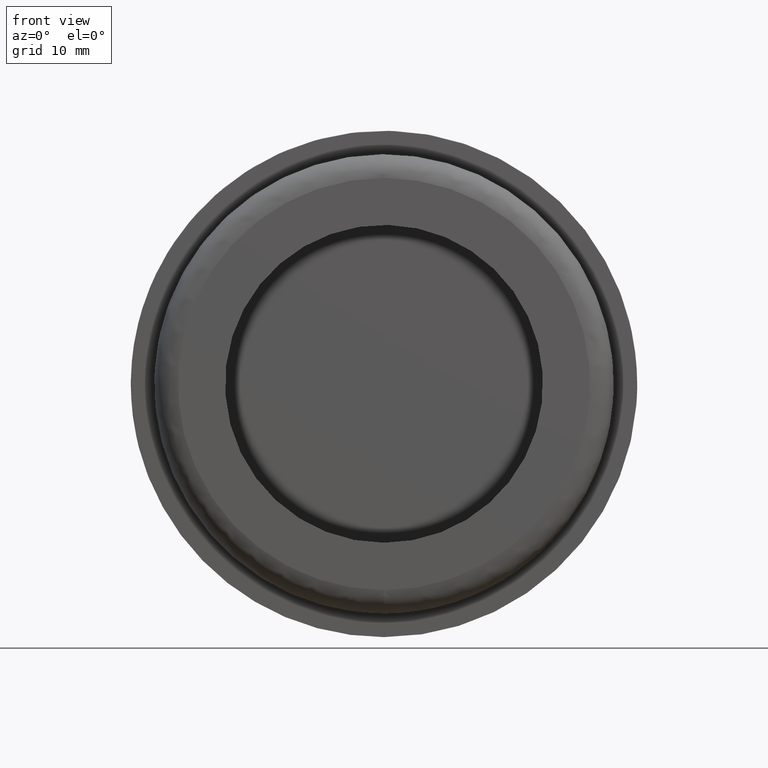
[diagram: clean part render]
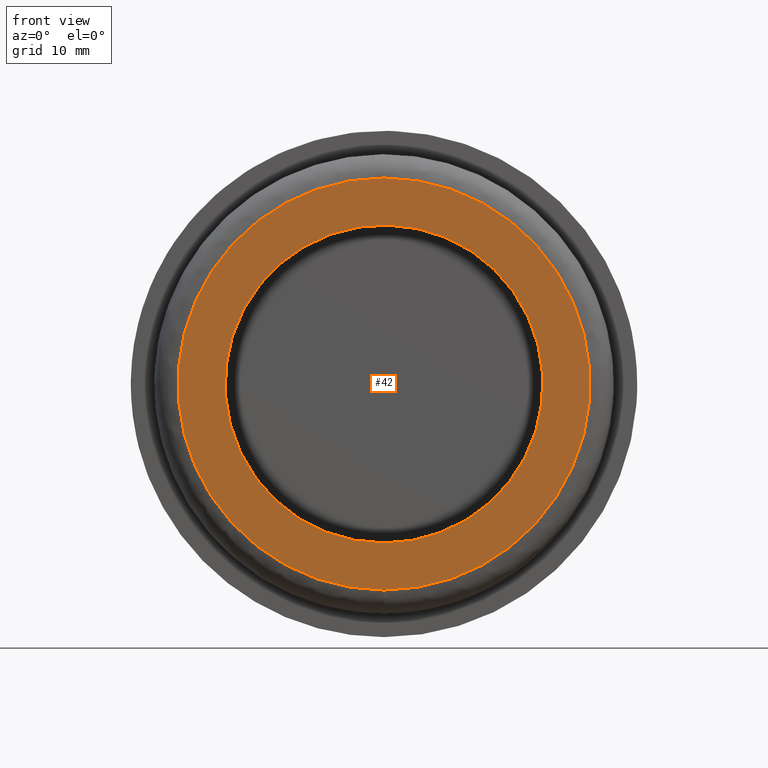
[diagram: same view with one face highlighted and labeled with its STEP entity id]
A machine part, front view. The second image highlights one B-rep face of the part: STEP entity #42.
In plain terms, the highlighted planar face has unit normal (0, 1, 0).
Its self-contained STEP definition (entity closure, byte-faithful):
#42=ADVANCED_FACE('',(#90,#91),#89,.F.);
#89=PLANE('',#357);
#90=FACE_OUTER_BOUND('',#358,.T.);
#91=FACE_BOUND('',#359,.T.);
#354=CARTESIAN_POINT('',(-3.63730669634E+001,-2.90524800000E-015,-4.02500000029E+001));
#355=DIRECTION('',(0.00000000000E+000,1.00000000000E+000,0.00000000000E+000));
#356=DIRECTION('',(0.00000000000E+000,0.00000000000E+000,1.00000000000E+000));
#357=AXIS2_PLACEMENT_3D('',#354,#355,#356);
#358=EDGE_LOOP('',(#662,#663));
#359=EDGE_LOOP('',(#664,#665,#666));
#662=ORIENTED_EDGE('',*,*,#826,.T.);
#663=ORIENTED_EDGE('',*,*,#827,.T.);
#664=ORIENTED_EDGE('',*,*,#828,.F.);
#665=ORIENTED_EDGE('',*,*,#829,.F.);
#666=ORIENTED_EDGE('',*,*,#830,.F.);
#826=EDGE_CURVE('',#980,#981,#982,.T.);
#827=EDGE_CURVE('',#981,#980,#988,.T.);
#828=EDGE_CURVE('',#994,#995,#996,.T.);
#829=EDGE_CURVE('',#1002,#994,#1003,.T.);
#830=EDGE_CURVE('',#995,#1002,#1009,.T.);
#980=VERTEX_POINT('',#1510);
#981=VERTEX_POINT('',#1511);
#982=CIRCLE('',#1515,1.75000000021E+001);
#988=CIRCLE('',#1519,1.75000000021E+001);
#994=VERTEX_POINT('',#1520);
#995=VERTEX_POINT('',#1521);
#996=CIRCLE('',#1525,1.35000000000E+001);
#1002=VERTEX_POINT('',#1526);
#1003=CIRCLE('',#1530,1.35000000000E+001);
#1009=CIRCLE('',#1534,1.35000000000E+001);
#1510=CARTESIAN_POINT('',(-1.16573417586E-015,1.62315690205E-013,1.75000000043E+001));
#1511=CARTESIAN_POINT('',(1.80274758084E-009,-1.62203970153E-013,-1.75000000000E+001));
#1512=CARTESIAN_POINT('',(9.01369645590E-010,5.58600257421E-017,2.13179696118E-009));
#1513=DIRECTION('',(3.10037343109E-016,-1.00000000000E+000,9.27199029482E-015));
#1514=DIRECTION('',(-5.15072776097E-011,9.27199029480E-015,1.00000000000E+000));
#1515=AXIS2_PLACEMENT_3D('',#1512,#1513,#1514);
#1516=CARTESIAN_POINT('',(9.01369645590E-010,5.58600257421E-017,2.13179696118E-009));
#1517=DIRECTION('',(3.10037343109E-016,-1.00000000000E+000,9.27199029482E-015));
#1518=DIRECTION('',(-5.15072776097E-011,9.27199029480E-015,1.00000000000E+000));
#1519=AXIS2_PLACEMENT_3D('',#1516,#1517,#1518);
#1520=CARTESIAN_POINT('',(-1.34056291886E+001,-1.59027443497E-015,1.59345726550E+000));
#1521=CARTESIAN_POINT('',(-7.32747196253E-015,5.62041904447E-015,-1.35000000000E+001));
#1522=CARTESIAN_POINT('',(7.36122274247E-012,-1.81261084195E-015,1.61941571264E-011));
#1523=DIRECTION('',(-8.20316365691E-017,-1.00000000000E+000,-5.50594806402E-016));
#1524=DIRECTION('',(-5.45452571998E-013,5.50594806402E-016,-1.00000000000E+000));
#1525=AXIS2_PLACEMENT_3D('',#1522,#1523,#1524);
#1526=CARTESIAN_POINT('',(1.34053529972E+001,-2.03364618803E-015,-1.59577912623E+000));
#1527=CARTESIAN_POINT('',(7.36122274247E-012,-1.81261084195E-015,1.61941571264E-011));
#1528=DIRECTION('',(-8.20316365691E-017,-1.00000000000E+000,-5.50594806402E-016));
#1529=DIRECTION('',(-5.45452571998E-013,5.50594806402E-016,-1.00000000000E+000));
#1530=AXIS2_PLACEMENT_3D('',#1527,#1528,#1529);
#1531=CARTESIAN_POINT('',(7.36122274247E-012,-1.81261084195E-015,1.61941571264E-011));
#1532=DIRECTION('',(-8.20316365691E-017,-1.00000000000E+000,-5.50594806402E-016));
#1533=DIRECTION('',(-5.45452571998E-013,5.50594806402E-016,-1.00000000000E+000));
#1534=AXIS2_PLACEMENT_3D('',#1531,#1532,#1533);